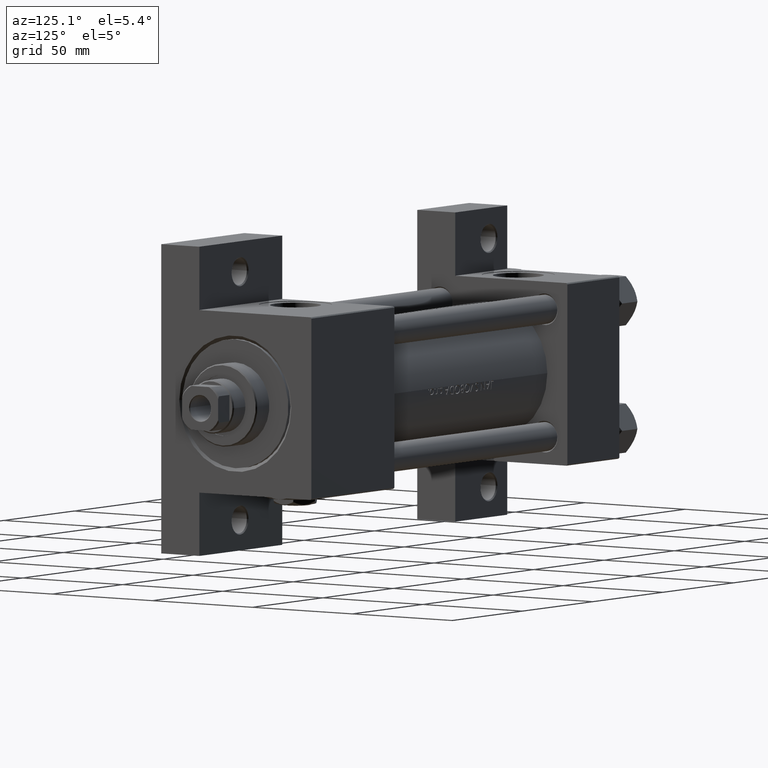
[diagram: clean part render]
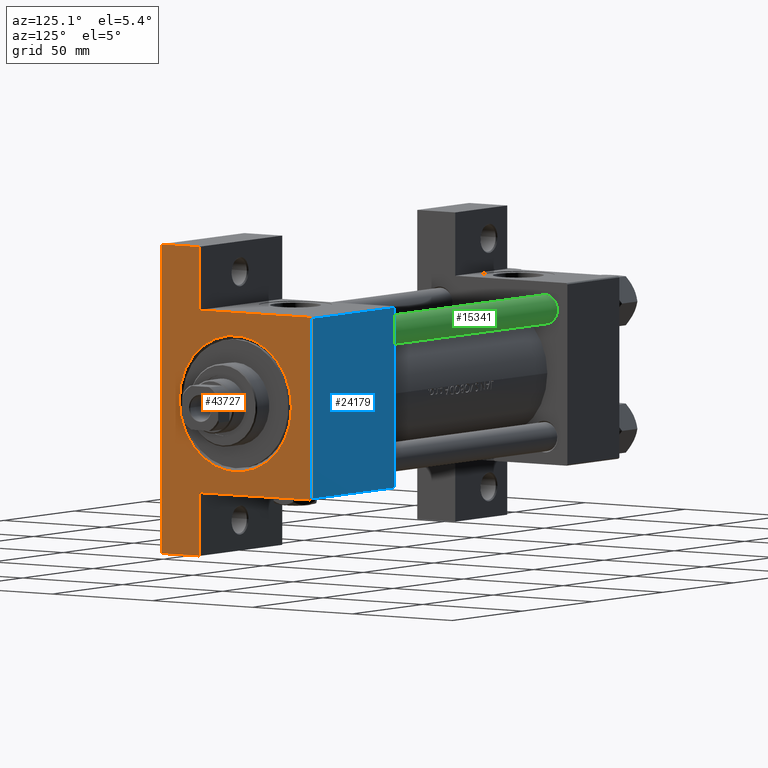
[diagram: same view with three faces highlighted in distinct colors, each labeled with its STEP entity id]
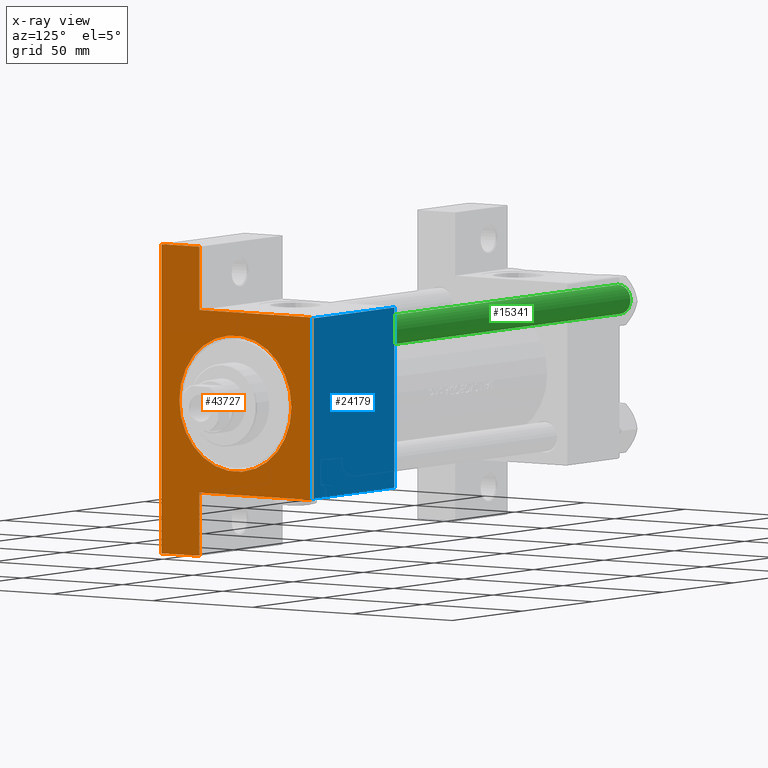
[diagram: x-ray of the same camera — body ghosted, the three highlighted faces saturated]
A machine part, auxiliary view with three faces highlighted in distinct colors.
The next image is the same camera in x-ray (body ghosted, the three faces saturated) — at least one of them is partly hidden behind the body in this view.
Their STEP definitions:

[orange] entity #43727 — the highlighted planar face has unit normal (-1, 0, 0).
#284 = DIRECTION ( 'NONE',  ( 0.000000000000000000, -1.000000000000000000, -1.850371707708594316E-16 ) ) ;
#345 = EDGE_CURVE ( 'NONE', #32896, #10675, #45535, .T. ) ;
#387 = LINE ( 'NONE', #5085, #47065 ) ;
#524 = DIRECTION ( 'NONE',  ( -1.000000000000000000, -0.000000000000000000, 0.000000000000000000 ) ) ;
#752 = FACE_OUTER_BOUND ( 'NONE', #38338, .T. ) ;
#1193 = VERTEX_POINT ( 'NONE', #13269 ) ;
#2823 = VERTEX_POINT ( 'NONE', #15604 ) ;
#3062 = EDGE_CURVE ( 'NONE', #11957, #22801, #42248, .T. ) ;
#3516 = CARTESIAN_POINT ( 'NONE',  ( 219.0000000000000000, 0.000000000000000000, 0.000000000000000000 ) ) ;
#4164 = DIRECTION ( 'NONE',  ( 0.000000000000000000, 0.000000000000000000, 1.000000000000000000 ) ) ;
#4976 = CARTESIAN_POINT ( 'NONE',  ( 219.0000000000000000, 3.429011037612582176E-15, 27.49999999999993960 ) ) ;
#5085 = CARTESIAN_POINT ( 'NONE',  ( 219.0000000000000284, -63.50000000000001421, -18.50000000000000000 ) ) ;
#6995 = EDGE_CURVE ( 'NONE', #11957, #1193, #42959, .T. ) ;
#7081 = ORIENTED_EDGE ( 'NONE', *, *, #40532, .F. ) ;
#7515 = CARTESIAN_POINT ( 'NONE',  ( 219.0000000000000000, 37.50000000000000000, 37.49999999999999289 ) ) ;
#7651 = VERTEX_POINT ( 'NONE', #32036 ) ;
#7936 = EDGE_CURVE ( 'NONE', #27643, #33502, #46124, .T. ) ;
#8102 = VERTEX_POINT ( 'NONE', #19470 ) ;
#8604 = EDGE_CURVE ( 'NONE', #2823, #31315, #21132, .T. ) ;
#9582 = LINE ( 'NONE', #32791, #46255 ) ;
#10125 = ORIENTED_EDGE ( 'NONE', *, *, #28193, .T. ) ;
#10675 = VERTEX_POINT ( 'NONE', #29860 ) ;
#10731 = ORIENTED_EDGE ( 'NONE', *, *, #25236, .F. ) ;
#11576 = CARTESIAN_POINT ( 'NONE',  ( 219.0000000000000568, 63.49999999999998579, -18.50000000000000000 ) ) ;
#11887 = VERTEX_POINT ( 'NONE', #25418 ) ;
#11957 = VERTEX_POINT ( 'NONE', #22895 ) ;
#12756 = CARTESIAN_POINT ( 'NONE',  ( 219.0000000000000568, 63.49999999999998579, -18.50000000000000000 ) ) ;
#13002 = CARTESIAN_POINT ( 'NONE',  ( 219.0000000000000000, -37.00000000000002842, 37.49999999999997868 ) ) ;
#13269 = CARTESIAN_POINT ( 'NONE',  ( 219.0000000000000284, 37.49999999999996447, -18.50000000000000000 ) ) ;
#13806 = DIRECTION ( 'NONE',  ( 0.000000000000000000, 0.000000000000000000, 1.000000000000000000 ) ) ;
#13851 = CARTESIAN_POINT ( 'NONE',  ( 219.0000000000000284, -63.50000000000001421, -18.50000000000000000 ) ) ;
#15604 = CARTESIAN_POINT ( 'NONE',  ( 219.0000000000000000, -37.50000000000000711, -18.50000000000000355 ) ) ;
#16197 = VECTOR ( 'NONE', #36845, 1000.000000000000000 ) ;
#16361 = EDGE_CURVE ( 'NONE', #33502, #8102, #36642, .T. ) ;
#17053 = DIRECTION ( 'NONE',  ( 0.000000000000000000, -9.251858538542972814E-17, -1.000000000000000000 ) ) ;
#17406 = DIRECTION ( 'NONE',  ( 0.000000000000000000, 0.000000000000000000, -1.000000000000000000 ) ) ;
#17661 = EDGE_CURVE ( 'NONE', #10675, #32896, #42878, .T. ) ;
#18825 = AXIS2_PLACEMENT_3D ( 'NONE', #3516, #524, #26695 ) ;
#18986 = AXIS2_PLACEMENT_3D ( 'NONE', #38318, #42315, #4164 ) ;
#19470 = CARTESIAN_POINT ( 'NONE',  ( 219.0000000000000000, -37.50000000000000000, 36.99999999999997868 ) ) ;
#20713 = ORIENTED_EDGE ( 'NONE', *, *, #17661, .T. ) ;
#20874 = DIRECTION ( 'NONE',  ( -0.000000000000000000, -1.000000000000000000, -0.000000000000000000 ) ) ;
#21132 = LINE ( 'NONE', #35365, #41757 ) ;
#21390 = ORIENTED_EDGE ( 'NONE', *, *, #27066, .T. ) ;
#22311 = DIRECTION ( 'NONE',  ( 0.000000000000000000, 0.000000000000000000, -1.000000000000000000 ) ) ;
#22396 = DIRECTION ( 'NONE',  ( -0.000000000000000000, -0.7071067811865279218, -0.7071067811865671127 ) ) ;
#22801 = VERTEX_POINT ( 'NONE', #35423 ) ;
#22895 = CARTESIAN_POINT ( 'NONE',  ( 219.0000000000000568, 63.49999999999998579, -18.50000000000000000 ) ) ;
#23363 = VECTOR ( 'NONE', #43938, 1000.000000000000000 ) ;
#23898 = CARTESIAN_POINT ( 'NONE',  ( 219.0000000000000000, 37.50000000000000000, 37.49999999999999289 ) ) ;
#25035 = CARTESIAN_POINT ( 'NONE',  ( 219.0000000000000000, 0.000000000000000000, -0.5000000000000004441 ) ) ;
#25236 = EDGE_CURVE ( 'NONE', #22801, #7651, #44719, .T. ) ;
#25418 = CARTESIAN_POINT ( 'NONE',  ( 219.0000000000000000, 37.50000000000000000, 37.00000000000002132 ) ) ;
#25822 = ORIENTED_EDGE ( 'NONE', *, *, #7936, .T. ) ;
#25907 = ORIENTED_EDGE ( 'NONE', *, *, #45232, .T. ) ;
#26167 = ORIENTED_EDGE ( 'NONE', *, *, #345, .T. ) ;
#26695 = DIRECTION ( 'NONE',  ( 0.000000000000000000, 0.000000000000000000, 1.000000000000000000 ) ) ;
#27049 = DIRECTION ( 'NONE',  ( 0.000000000000000000, 0.000000000000000000, -1.000000000000000000 ) ) ;
#27066 = EDGE_CURVE ( 'NONE', #8102, #2823, #9582, .T. ) ;
#27643 = VERTEX_POINT ( 'NONE', #30702 ) ;
#27664 = LINE ( 'NONE', #23898, #37041 ) ;
#28193 = EDGE_CURVE ( 'NONE', #31315, #7651, #387, .T. ) ;
#29284 = CARTESIAN_POINT ( 'NONE',  ( 219.0000000000000000, 37.50000000000000000, -37.50000000000000000 ) ) ;
#29359 = VECTOR ( 'NONE', #22396, 1000.000000000000000 ) ;
#29860 = CARTESIAN_POINT ( 'NONE',  ( 219.0000000000000000, 0.000000000000000000, -28.49999999999994316 ) ) ;
#30702 = CARTESIAN_POINT ( 'NONE',  ( 219.0000000000000000, 37.00000000000000000, 37.49999999999999289 ) ) ;
#31307 = VECTOR ( 'NONE', #22311, 1000.000000000000000 ) ;
#31315 = VERTEX_POINT ( 'NONE', #13851 ) ;
#32036 = CARTESIAN_POINT ( 'NONE',  ( 219.0000000000000284, -63.50000000000001421, -37.50000000000000000 ) ) ;
#32791 = CARTESIAN_POINT ( 'NONE',  ( 219.0000000000000000, -37.50000000000000000, 37.49999999999997868 ) ) ;
#32896 = VERTEX_POINT ( 'NONE', #4976 ) ;
#33326 = ORIENTED_EDGE ( 'NONE', *, *, #16361, .T. ) ;
#33502 = VERTEX_POINT ( 'NONE', #13002 ) ;
#33631 = CARTESIAN_POINT ( 'NONE',  ( 219.0000000000000000, -37.50000000000000000, 36.99999999999997868 ) ) ;
#34425 = PLANE ( 'NONE',  #18825 ) ;
#34677 = FACE_BOUND ( 'NONE', #44827, .T. ) ;
#35365 = CARTESIAN_POINT ( 'NONE',  ( 219.0000000000000284, -63.50000000000001421, -18.50000000000000000 ) ) ;
#35423 = CARTESIAN_POINT ( 'NONE',  ( 219.0000000000000568, 63.49999999999998579, -37.50000000000000000 ) ) ;
#36642 = LINE ( 'NONE', #33631, #29359 ) ;
#36761 = DIRECTION ( 'NONE',  ( 0.000000000000000000, -1.000000000000000000, 0.000000000000000000 ) ) ;
#36845 = DIRECTION ( 'NONE',  ( 0.000000000000000000, -0.7071067811865671127, 0.7071067811865279218 ) ) ;
#37041 = VECTOR ( 'NONE', #17406, 1000.000000000000000 ) ;
#38318 = CARTESIAN_POINT ( 'NONE',  ( 219.0000000000000000, 0.000000000000000000, -0.5000000000000004441 ) ) ;
#38338 = EDGE_LOOP ( 'NONE', ( #7081, #25907, #25822, #33326, #21390, #40842, #10125, #10731, #39179, #40028 ) ) ;
#39179 = ORIENTED_EDGE ( 'NONE', *, *, #3062, .F. ) ;
#40028 = ORIENTED_EDGE ( 'NONE', *, *, #6995, .T. ) ;
#40532 = EDGE_CURVE ( 'NONE', #11887, #1193, #27664, .T. ) ;
#40756 = DIRECTION ( 'NONE',  ( -1.000000000000000000, -0.000000000000000000, 0.000000000000000000 ) ) ;
#40842 = ORIENTED_EDGE ( 'NONE', *, *, #8604, .T. ) ;
#41077 = LINE ( 'NONE', #48283, #16197 ) ;
#41418 = VECTOR ( 'NONE', #36761, 1000.000000000000000 ) ;
#41757 = VECTOR ( 'NONE', #20874, 1000.000000000000000 ) ;
#42248 = LINE ( 'NONE', #11576, #31307 ) ;
#42315 = DIRECTION ( 'NONE',  ( -1.000000000000000000, -0.000000000000000000, 0.000000000000000000 ) ) ;
#42878 = CIRCLE ( 'NONE', #18986, 27.99999999999994316 ) ;
#42959 = LINE ( 'NONE', #12756, #23363 ) ;
#43727 = ADVANCED_FACE ( 'NONE', ( #34677, #752 ), #34425, .F. ) ;
#43938 = DIRECTION ( 'NONE',  ( -1.067522139062649685E-15, -1.000000000000000000, 0.000000000000000000 ) ) ;
#44719 = LINE ( 'NONE', #29284, #41418 ) ;
#44827 = EDGE_LOOP ( 'NONE', ( #20713, #26167 ) ) ;
#44898 = VECTOR ( 'NONE', #284, 1000.000000000000000 ) ;
#45232 = EDGE_CURVE ( 'NONE', #11887, #27643, #41077, .T. ) ;
#45535 = CIRCLE ( 'NONE', #47123, 27.99999999999994316 ) ;
#46124 = LINE ( 'NONE', #7515, #44898 ) ;
#46255 = VECTOR ( 'NONE', #17053, 1000.000000000000000 ) ;
#47065 = VECTOR ( 'NONE', #27049, 1000.000000000000000 ) ;
#47123 = AXIS2_PLACEMENT_3D ( 'NONE', #25035, #40756, #13806 ) ;
#48283 = CARTESIAN_POINT ( 'NONE',  ( 219.0000000000000000, 37.00000000000000000, 37.49999999999999289 ) ) ;

[blue] entity #24179 — the highlighted planar face has unit normal (0, -1, -0).
#284 = DIRECTION ( 'NONE',  ( 0.000000000000000000, -1.000000000000000000, -1.850371707708594316E-16 ) ) ;
#950 = EDGE_CURVE ( 'NONE', #5675, #33502, #26519, .T. ) ;
#1881 = DIRECTION ( 'NONE',  ( 0.000000000000000000, 1.850371707708594316E-16, -1.000000000000000000 ) ) ;
#3230 = ORIENTED_EDGE ( 'NONE', *, *, #950, .T. ) ;
#5675 = VERTEX_POINT ( 'NONE', #31301 ) ;
#6474 = AXIS2_PLACEMENT_3D ( 'NONE', #47723, #1881, #40291 ) ;
#7244 = VECTOR ( 'NONE', #16497, 1000.000000000000000 ) ;
#7515 = CARTESIAN_POINT ( 'NONE',  ( 219.0000000000000000, 37.50000000000000000, 37.49999999999999289 ) ) ;
#7826 = DIRECTION ( 'NONE',  ( 1.000000000000000000, 0.000000000000000000, 0.000000000000000000 ) ) ;
#7936 = EDGE_CURVE ( 'NONE', #27643, #33502, #46124, .T. ) ;
#9024 = CARTESIAN_POINT ( 'NONE',  ( 160.0000000000000000, 37.00000000000000000, 37.49999999999999289 ) ) ;
#9114 = VERTEX_POINT ( 'NONE', #34989 ) ;
#11560 = CARTESIAN_POINT ( 'NONE',  ( 219.0000000000000000, -37.00000000000002842, 37.49999999999997868 ) ) ;
#13002 = CARTESIAN_POINT ( 'NONE',  ( 219.0000000000000000, -37.00000000000002842, 37.49999999999997868 ) ) ;
#13575 = FACE_OUTER_BOUND ( 'NONE', #36660, .T. ) ;
#16497 = DIRECTION ( 'NONE',  ( -1.000000000000000000, 0.000000000000000000, 0.000000000000000000 ) ) ;
#18378 = VECTOR ( 'NONE', #27666, 1000.000000000000000 ) ;
#20575 = PLANE ( 'NONE',  #6474 ) ;
#22293 = EDGE_CURVE ( 'NONE', #9114, #5675, #42151, .T. ) ;
#22449 = EDGE_CURVE ( 'NONE', #27643, #9114, #46423, .T. ) ;
#24071 = ORIENTED_EDGE ( 'NONE', *, *, #22293, .T. ) ;
#24179 = ADVANCED_FACE ( 'NONE', ( #13575 ), #20575, .F. ) ;
#26519 = LINE ( 'NONE', #11560, #29656 ) ;
#27643 = VERTEX_POINT ( 'NONE', #30702 ) ;
#27666 = DIRECTION ( 'NONE',  ( 0.000000000000000000, -1.000000000000000000, -1.850371707708594316E-16 ) ) ;
#29656 = VECTOR ( 'NONE', #7826, 1000.000000000000000 ) ;
#30702 = CARTESIAN_POINT ( 'NONE',  ( 219.0000000000000000, 37.00000000000000000, 37.49999999999999289 ) ) ;
#31301 = CARTESIAN_POINT ( 'NONE',  ( 160.0000000000000000, -37.00000000000002842, 37.49999999999997868 ) ) ;
#33502 = VERTEX_POINT ( 'NONE', #13002 ) ;
#34989 = CARTESIAN_POINT ( 'NONE',  ( 160.0000000000000000, 37.00000000000000000, 37.49999999999999289 ) ) ;
#36660 = EDGE_LOOP ( 'NONE', ( #48249, #41457, #24071, #3230 ) ) ;
#38650 = CARTESIAN_POINT ( 'NONE',  ( 160.0000000000000000, 37.50000000000000000, 37.49999999999999289 ) ) ;
#40291 = DIRECTION ( 'NONE',  ( 0.000000000000000000, 1.000000000000000000, 1.850371707708594316E-16 ) ) ;
#41457 = ORIENTED_EDGE ( 'NONE', *, *, #22449, .T. ) ;
#42151 = LINE ( 'NONE', #38650, #18378 ) ;
#44898 = VECTOR ( 'NONE', #284, 1000.000000000000000 ) ;
#46124 = LINE ( 'NONE', #7515, #44898 ) ;
#46423 = LINE ( 'NONE', #9024, #7244 ) ;
#47723 = CARTESIAN_POINT ( 'NONE',  ( 219.0000000000000000, 37.50000000000000000, 37.49999999999999289 ) ) ;
#48249 = ORIENTED_EDGE ( 'NONE', *, *, #7936, .F. ) ;

[green] entity #15341 — the highlighted cylindrical surface (edge-blend (fillet) strip) has radius 6 mm, axis along (-1, -0, -0).
#1407 = VERTEX_POINT ( 'NONE', #23691 ) ;
#2684 = LINE ( 'NONE', #44793, #44114 ) ;
#4842 = DIRECTION ( 'NONE',  ( 0.000000000000000000, 0.000000000000000000, -1.000000000000000000 ) ) ;
#6911 = DIRECTION ( 'NONE',  ( -0.000000000000000000, -0.000000000000000000, -1.000000000000000000 ) ) ;
#7678 = VERTEX_POINT ( 'NONE', #42475 ) ;
#9136 = LINE ( 'NONE', #29096, #47314 ) ;
#15341 = ADVANCED_FACE ( 'NONE', ( #48845 ), #29218, .T. ) ;
#18220 = CARTESIAN_POINT ( 'NONE',  ( 0.000000000000000000, 0.000000000000000000, 189.0000000000000000 ) ) ;
#18703 = DIRECTION ( 'NONE',  ( -0.000000000000000000, -0.000000000000000000, -1.000000000000000000 ) ) ;
#19186 = CARTESIAN_POINT ( 'NONE',  ( 6.000000000000000888, 7.347880794884120722E-16, 188.4999999999999432 ) ) ;
#20843 = DIRECTION ( 'NONE',  ( -0.000000000000000000, -0.000000000000000000, -1.000000000000000000 ) ) ;
#21244 = AXIS2_PLACEMENT_3D ( 'NONE', #18220, #18703, #29939 ) ;
#23358 = CARTESIAN_POINT ( 'NONE',  ( 0.000000000000000000, 0.000000000000000000, 0.5000000000000281997 ) ) ;
#23476 = AXIS2_PLACEMENT_3D ( 'NONE', #23358, #46530, #31595 ) ;
#23691 = CARTESIAN_POINT ( 'NONE',  ( 6.000000000000000888, 7.347880794884120722E-16, 0.5000000000000281997 ) ) ;
#25881 = CIRCLE ( 'NONE', #23476, 6.000000000000000888 ) ;
#28350 = EDGE_LOOP ( 'NONE', ( #36348, #28774, #32734, #43689 ) ) ;
#28774 = ORIENTED_EDGE ( 'NONE', *, *, #45250, .T. ) ;
#29096 = CARTESIAN_POINT ( 'NONE',  ( -6.000000000000000888, 0.000000000000000000, 189.0000000000000000 ) ) ;
#29218 = CYLINDRICAL_SURFACE ( 'NONE', #21244, 6.000000000000000888 ) ;
#29939 = DIRECTION ( 'NONE',  ( -1.000000000000000000, 0.000000000000000000, 0.000000000000000000 ) ) ;
#30722 = AXIS2_PLACEMENT_3D ( 'NONE', #47689, #4842, #35520 ) ;
#31595 = DIRECTION ( 'NONE',  ( 1.000000000000000000, 0.000000000000000000, 0.000000000000000000 ) ) ;
#32734 = ORIENTED_EDGE ( 'NONE', *, *, #40719, .T. ) ;
#33848 = VERTEX_POINT ( 'NONE', #19186 ) ;
#35520 = DIRECTION ( 'NONE',  ( 1.000000000000000000, 0.000000000000000000, 0.000000000000000000 ) ) ;
#36066 = CARTESIAN_POINT ( 'NONE',  ( -6.000000000000000888, 0.000000000000000000, 0.5000000000000281997 ) ) ;
#36348 = ORIENTED_EDGE ( 'NONE', *, *, #42210, .T. ) ;
#38798 = EDGE_CURVE ( 'NONE', #7678, #38827, #9136, .T. ) ;
#38827 = VERTEX_POINT ( 'NONE', #36066 ) ;
#40719 = EDGE_CURVE ( 'NONE', #1407, #38827, #25881, .T. ) ;
#42210 = EDGE_CURVE ( 'NONE', #7678, #33848, #48217, .T. ) ;
#42475 = CARTESIAN_POINT ( 'NONE',  ( -6.000000000000000888, 0.000000000000000000, 188.4999999999999432 ) ) ;
#43689 = ORIENTED_EDGE ( 'NONE', *, *, #38798, .F. ) ;
#44114 = VECTOR ( 'NONE', #6911, 1000.000000000000000 ) ;
#44793 = CARTESIAN_POINT ( 'NONE',  ( 6.000000000000000888, 7.347880794884120722E-16, 189.0000000000000000 ) ) ;
#45250 = EDGE_CURVE ( 'NONE', #33848, #1407, #2684, .T. ) ;
#46530 = DIRECTION ( 'NONE',  ( -0.000000000000000000, -0.000000000000000000, 1.000000000000000000 ) ) ;
#47314 = VECTOR ( 'NONE', #20843, 1000.000000000000000 ) ;
#47689 = CARTESIAN_POINT ( 'NONE',  ( 0.000000000000000000, 0.000000000000000000, 188.4999999999999432 ) ) ;
#48217 = CIRCLE ( 'NONE', #30722, 6.000000000000000888 ) ;
#48845 = FACE_OUTER_BOUND ( 'NONE', #28350, .T. ) ;